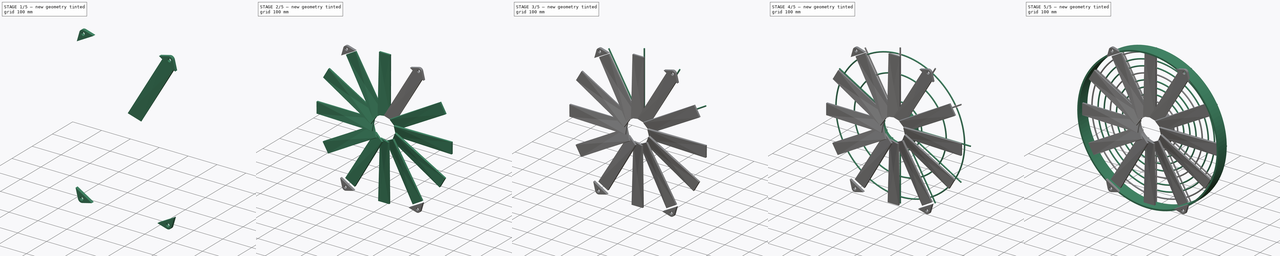
[diagram: build sequence overview — one tinted view per stage of 5, left to right]
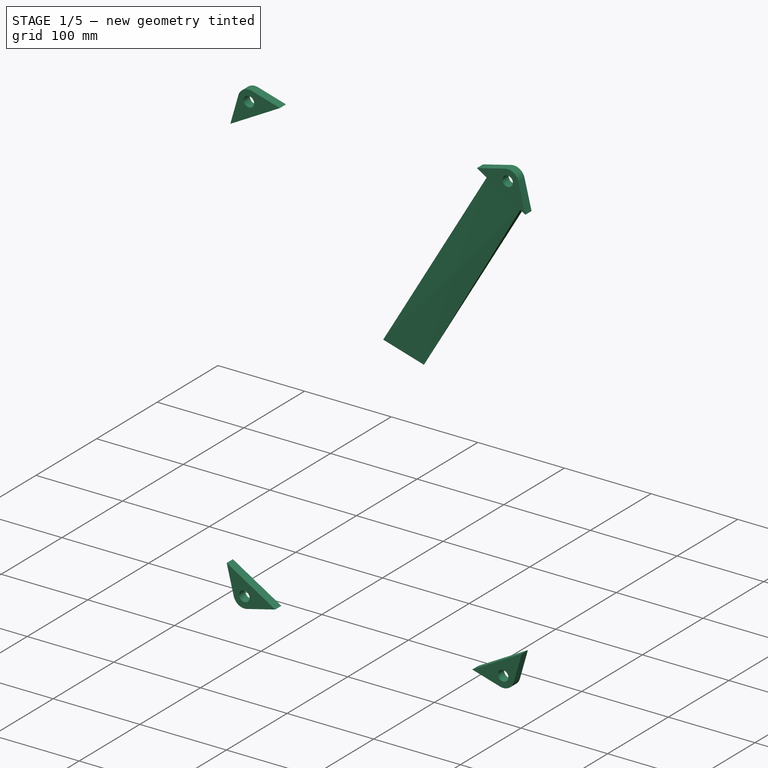
[diagram: stage 1 of 5 — iso view after this stage's code; geometry added in this stage tinted green]
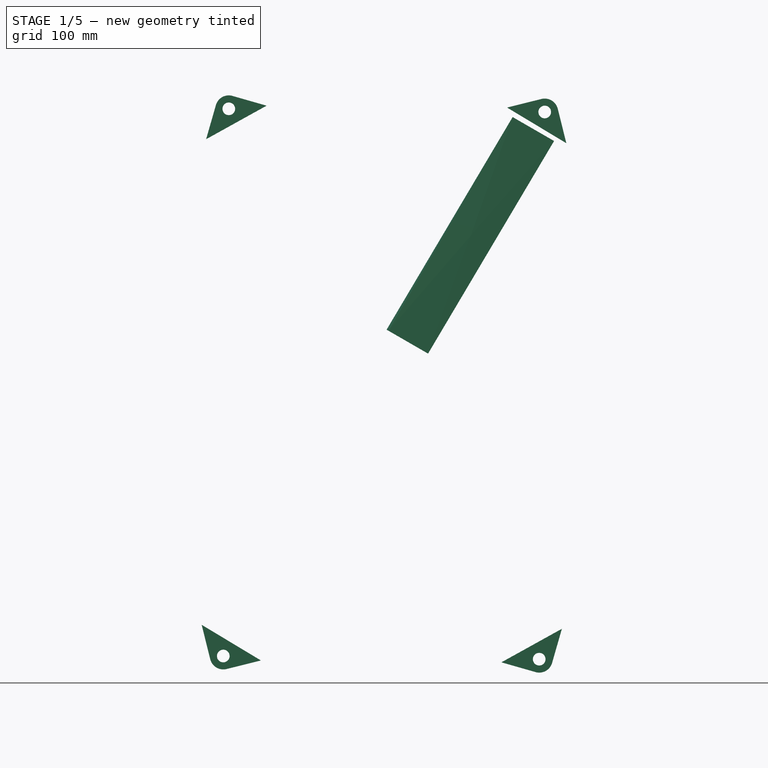
[diagram: stage 1 of 5 — front view after this stage's code; geometry added in this stage tinted green]
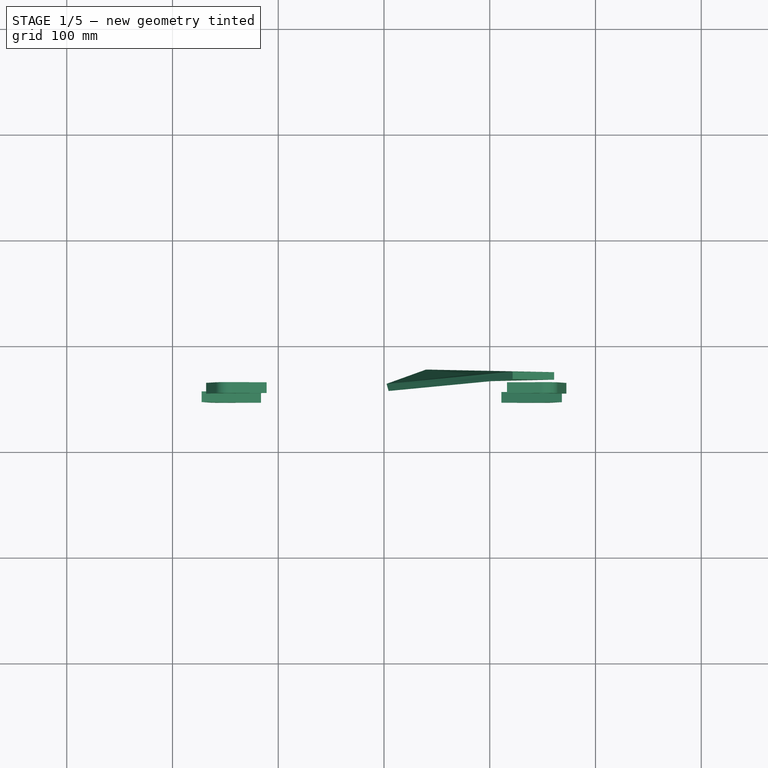
[diagram: stage 1 of 5 — top view after this stage's code; geometry added in this stage tinted green]
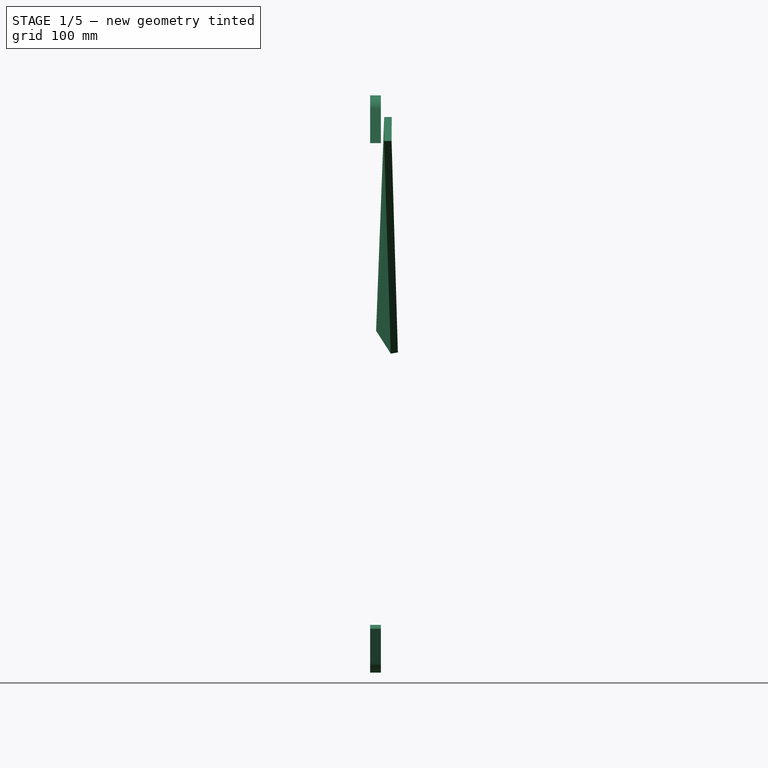
[diagram: stage 1 of 5 — right view after this stage's code; geometry added in this stage tinted green]
FCSTD DOCUMENT  (FreeCAD 0.15R4671 (Git))
Label: fan
License: All rights reserved
LicenseURL: http://en.wikipedia.org/wiki/All_rights_reserved
objects: Part::FeaturePython×13, Part::Torus×8, Part::MultiFuse×6, Sketcher::SketchObject×5, PartDesign::Pad×2, Part::Cylinder×2, PartDesign::Pocket×1, Part::Loft×1
note: 41 computed .brp shape members not serialized (recipe doc carries the construction recipe); baked Part::Feature solids carry a one-line shape summary decoded from their .brp

FEATURE [Sketcher::SketchObject] Sketch009
  Placement = pos=(0,-43.18,-50.8) rot=(-0.985257,0.120974,-0.120974;4.69754rad)
  sketch-geometry (6):
    g0: LineSegment StartX=221.955 StartY=274.772 StartZ=0 EndX=188.415 EndY=274.772 EndZ=0
    g1: LineSegment StartX=188.415 StartY=274.772 StartZ=0 EndX=234.655 EndY=228.532 EndZ=0
    g2: LineSegment StartX=234.655 StartY=228.532 StartZ=0 EndX=234.655 EndY=262.072 EndZ=0
    g3: ArcOfCircle CenterX=221.955 CenterY=262.072 CenterZ=0 NormalX=0 NormalY=0 NormalZ=1 Radius=12.7 StartAngle=0 EndAngle=1.5708
    g4: Circle CenterX=221.955 CenterY=262.072 CenterZ=0 NormalX=0 NormalY=0 NormalZ=1 Radius=5.97861
    g5: LineSegment [constr] StartX=234.655 StartY=228.532 StartZ=0 EndX=182.074 EndY=228.532 EndZ=0
  constraints (11):
    c: Horizontal(g0)
    c: Coincident(g0,g1)
    c: Coincident(g1,g2)
    c: Vertical(g2)
    c: Tangent(g0,g3) = -1.5708
    c: Tangent(g2,g3) = -1.5708
    c: Radius(g3) = 12.7
    c: Coincident(g4,g3)
    c: Coincident(g5,g1)
    c: Horizontal(g5)
    c: Angle(g1,g5) = 0.785398
FEATURE [PartDesign::Pad] Pad001  label="bolt support"
  Length = 10.16
  Length2 = 100
  Placement = pos=(0,-43.18,-50.8) rot=(-0.985257,0.120974,-0.120974;4.69754rad)
  Sketch = -> Sketch009
  Type = 0
FEATURE [Part::Loft] Loft  label="helix"
  Closed = false
  Ruled = false
  Sections = -> [Sketch002,Sketch003]
  Solid = true
FEATURE [Part::FeaturePython] Clone019  label="Clone of helix"  # Draft clone (typed FeaturePython)
  Objects = -> [Loft]
  Placement = pos=(0,0,0) rot=(0,1,0;0.523599rad)
  Scale = (1,1,1)
FEATURE [Part::FeaturePython] Clone024  label="Clone of bolt support"  # Draft clone (typed FeaturePython)
  Objects = -> [Pad001]
  Placement = pos=(43.9941,-43.18,-25.4) rot=(0.684276,-0.515639,0.515639;1.9414rad)
  Scale = (1,1,1)
FEATURE [Part::FeaturePython] Clone025  label="Clone of Clone of bolt support"  # Draft clone (typed FeaturePython)
  Objects = -> [Clone024]
  Placement = pos=(-43.9941,-43.18,25.4) rot=(0.470251,0.624045,-0.624045;2.26246rad)
  Scale = (1,1,1)
FEATURE [Part::FeaturePython] Clone026  label="Clone of bolt support001"  # Draft clone (typed FeaturePython)
  Objects = -> [Pad001]
  Placement = pos=(0,-43.18,50.8) rot=(0.086496,0.704457,-0.704457;2.96903rad)
  Scale = (1,1,1)
FEATURE [Part::MultiFuse] Fusion005
  Shapes = -> [Clone024,Pad001,Clone026,Clone025]
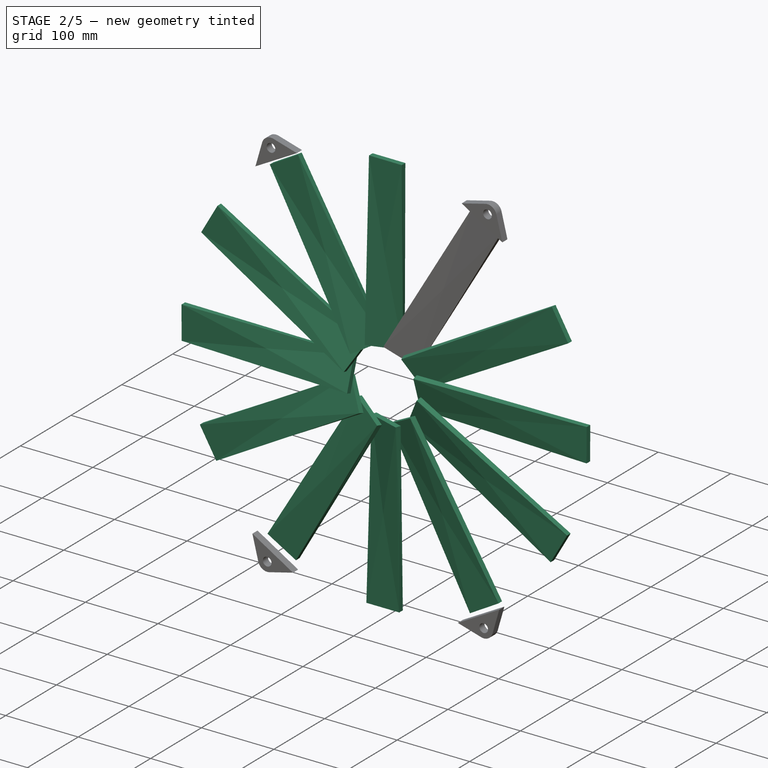
[diagram: stage 2 of 5 — iso view after this stage's code; geometry added in this stage tinted green]
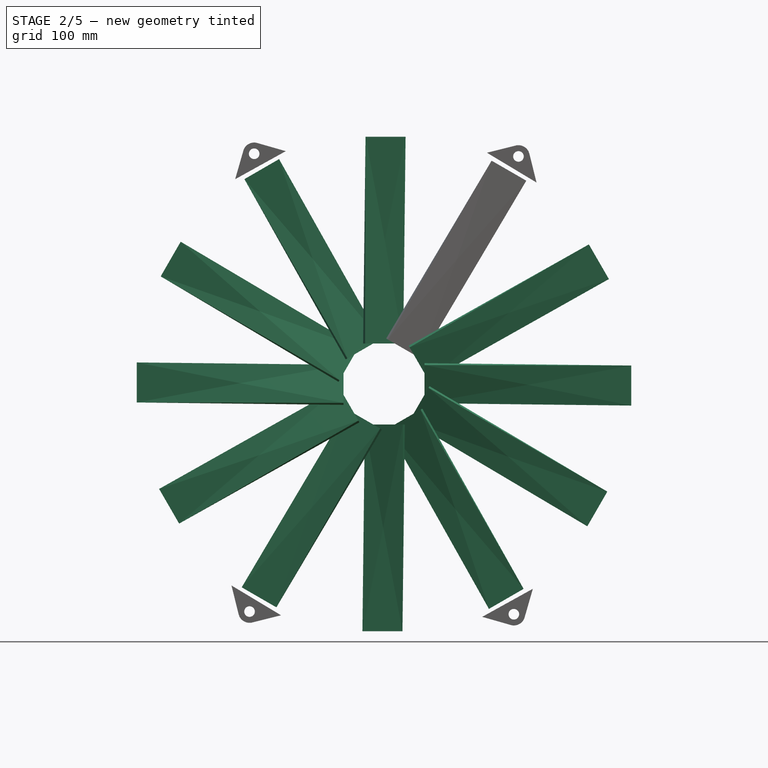
[diagram: stage 2 of 5 — front view after this stage's code; geometry added in this stage tinted green]
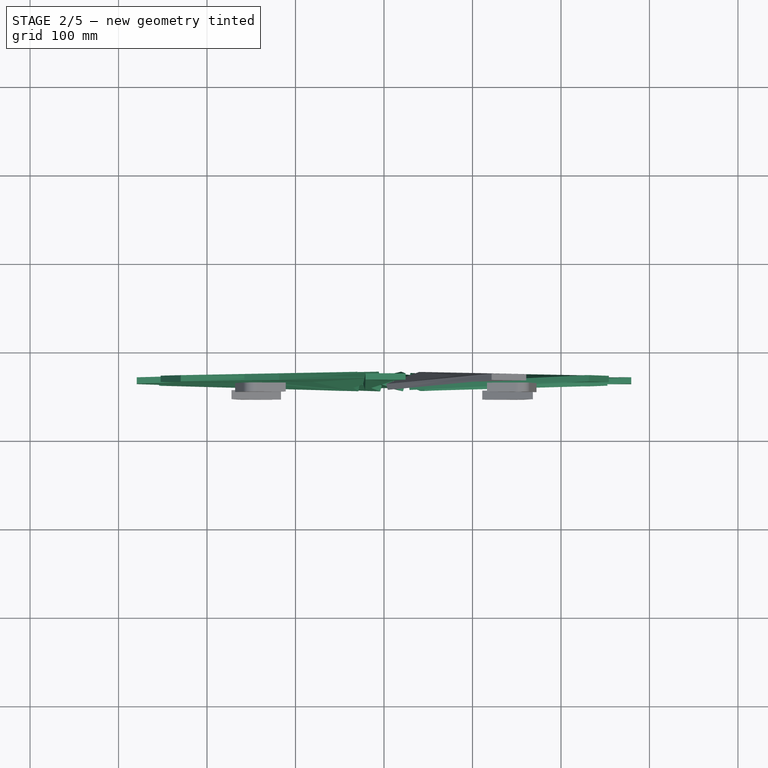
[diagram: stage 2 of 5 — top view after this stage's code; geometry added in this stage tinted green]
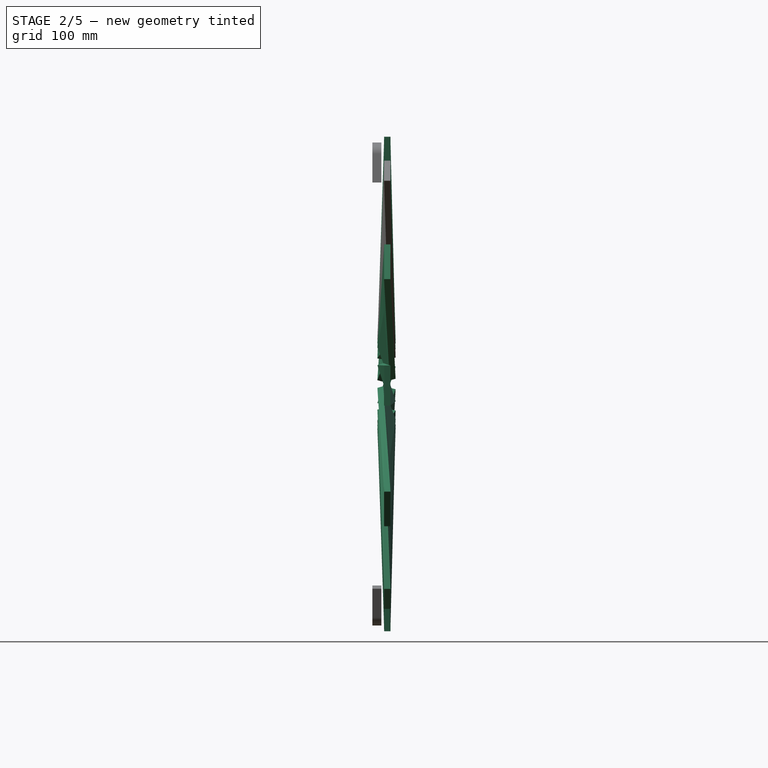
[diagram: stage 2 of 5 — right view after this stage's code; geometry added in this stage tinted green]
FEATURE [Part::FeaturePython] Clone020  label="Clone of Clone of helix"  # Draft clone (typed FeaturePython)
  Objects = -> [Clone019]
  Placement = pos=(0,0,0) rot=(0,1,0;1.0472rad)
  Scale = (1,1,1)
FEATURE [Part::FeaturePython] Clone021  label="Clone of Clone of Clone of helix"  # Draft clone (typed FeaturePython)
  Objects = -> [Clone020]
  Placement = pos=(0,0,0) rot=(0,1,0;1.5708rad)
  Scale = (1,1,1)
FEATURE [Part::MultiFuse] Fusion003
  Shapes = -> [Clone019,Clone021,Clone020,Loft]
FEATURE [Part::FeaturePython] Clone022  label="Clone of Fusion003"  # Draft clone (typed FeaturePython)
  Objects = -> [Fusion003]
  Placement = pos=(0,0,0) rot=(0,1,0;2.0944rad)
  Scale = (1,1,1)
FEATURE [Part::FeaturePython] Clone023  label="Clone of Clone of Fusion003"  # Draft clone (typed FeaturePython)
  Objects = -> [Clone022]
  Placement = pos=(0,0,0) rot=(0,1,0;4.18879rad)
  Scale = (1,1,1)
FEATURE [Part::MultiFuse] Fusion004
  Shapes = -> [Clone023,Clone022,Fusion003]
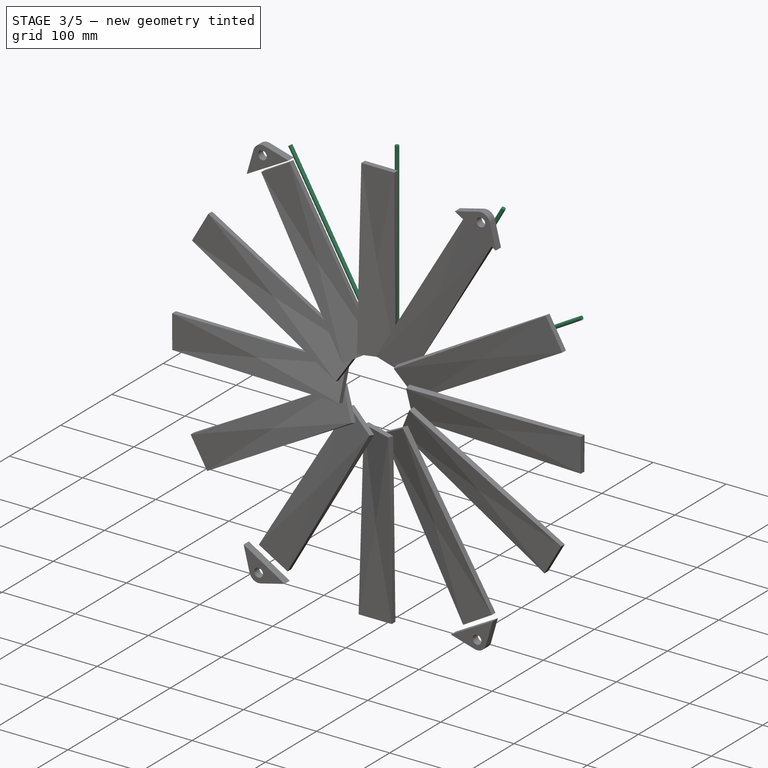
[diagram: stage 3 of 5 — iso view after this stage's code; geometry added in this stage tinted green]
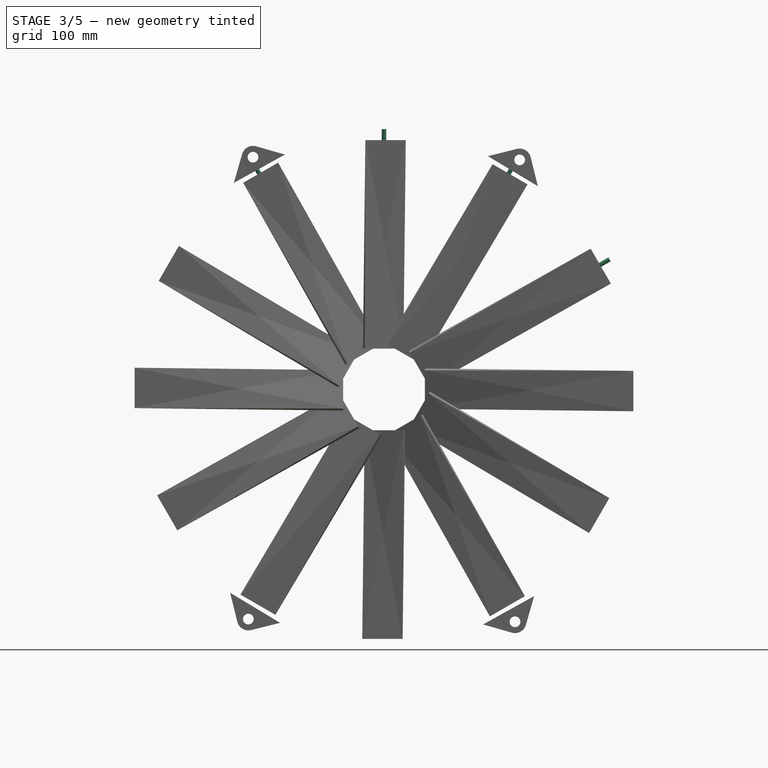
[diagram: stage 3 of 5 — front view after this stage's code; geometry added in this stage tinted green]
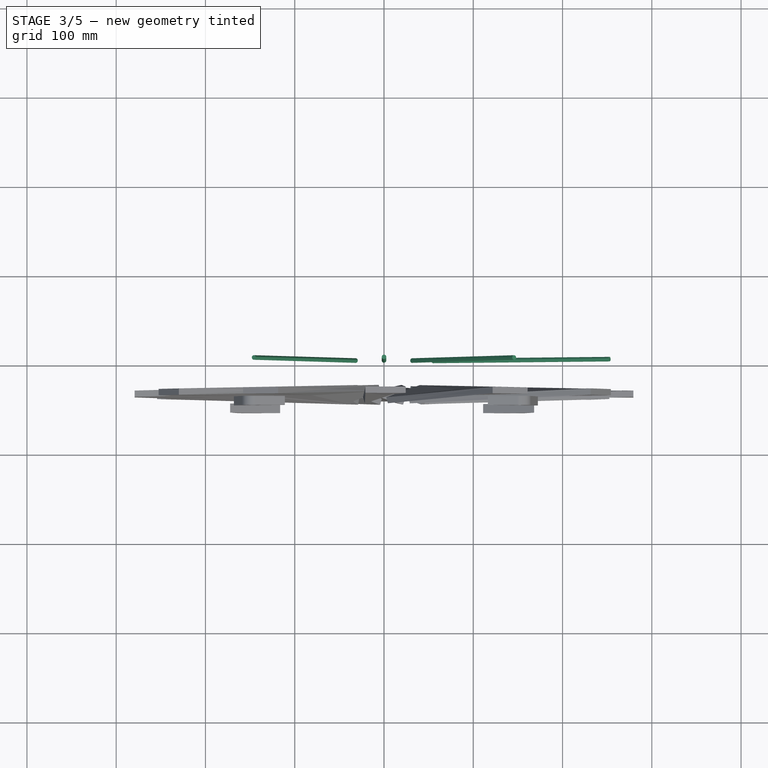
[diagram: stage 3 of 5 — top view after this stage's code; geometry added in this stage tinted green]
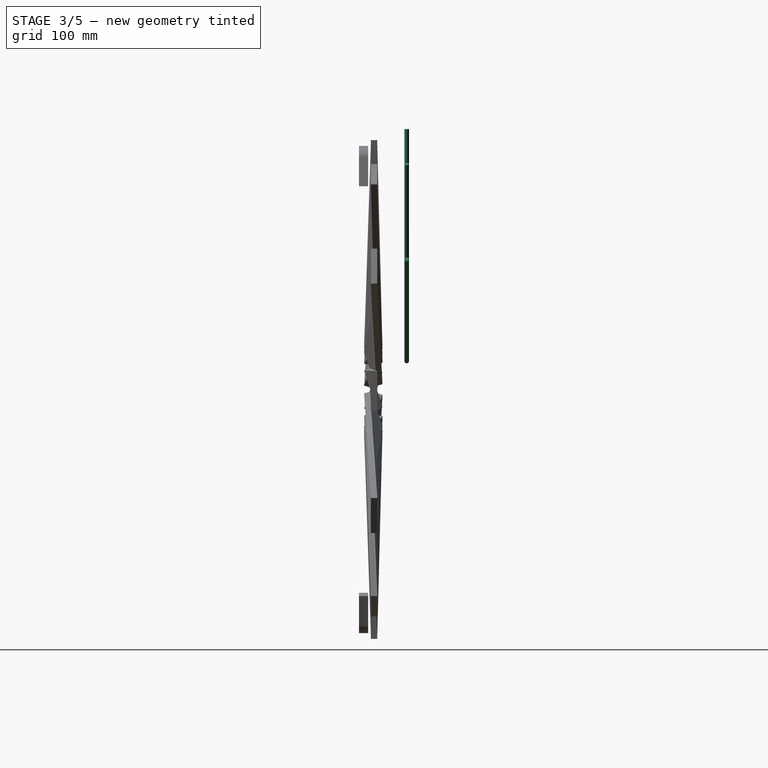
[diagram: stage 3 of 5 — right view after this stage's code; geometry added in this stage tinted green]
FEATURE [Sketcher::SketchObject] Sketch002
  Placement = pos=(0,-25.4,45.72) rot=(0,0,1;0rad)
  sketch-geometry (4):
    g0: LineSegment StartX=-23.5616 StartY=-15.5482 StartZ=0 EndX=19.5314 EndY=-1.69367 EndZ=0
    g1: LineSegment StartX=19.5314 StartY=-1.69367 StartZ=0 EndX=21.7028 EndY=-8.44756 EndZ=0
    g2: LineSegment StartX=21.7028 StartY=-8.44756 StartZ=0 EndX=-21.3902 EndY=-22.3021 EndZ=0
    g3: LineSegment StartX=-21.3902 StartY=-22.3021 StartZ=0 EndX=-23.5616 EndY=-15.5482 EndZ=0
  constraints (7):
    c: Coincident(g0,g1)
    c: Coincident(g1,g2)
    c: Coincident(g2,g3)
    c: Coincident(g3,g0)
    c: Perpendicular(g2,g3)
    c: Perpendicular(g1,g0)
    c: Perpendicular(g1,g2)
FEATURE [Sketcher::SketchObject] Sketch003
  Placement = pos=(6.35,-25.4,279.4) rot=(0,0,-1;0.314159rad)
  sketch-geometry (4):
    g0: LineSegment StartX=-23.5616 StartY=-15.5482 StartZ=0 EndX=19.5314 EndY=-1.69367 EndZ=0
    g1: LineSegment StartX=19.5314 StartY=-1.69367 StartZ=0 EndX=21.7028 EndY=-8.44756 EndZ=0
    g2: LineSegment StartX=21.7028 StartY=-8.44756 StartZ=0 EndX=-21.3902 EndY=-22.3021 EndZ=0
    g3: LineSegment StartX=-21.3902 StartY=-22.3021 StartZ=0 EndX=-23.5616 EndY=-15.5482 EndZ=0
  constraints (7):
    c: Coincident(g0,g1)
    c: Coincident(g1,g2)
    c: Coincident(g2,g3)
    c: Coincident(g3,g0)
    c: Perpendicular(g2,g3)
    c: Perpendicular(g1,g0)
    c: Perpendicular(g1,g2)
FEATURE [Part::Cylinder] Cylinder004
  Angle = 360
  Height = 203.2
  Placement = pos=(63.0991,0,0) rot=(0,1,0;1.5708rad)
  Radius = 0
FEATURE [Part::FeaturePython] Clone013  label="Clone of Cylinder004"  # Draft clone (typed FeaturePython)
  Objects = -> [Cylinder004]
  Placement = pos=(31.5495,0,-54.6454) rot=(0,1,0;2.61799rad)
  Scale = (1,1,1)
FEATURE [Part::FeaturePython] Clone014  label="Clone of Clone of Cylinder004"  # Draft clone (typed FeaturePython)
  Objects = -> [Clone013]
  Placement = pos=(0,0,-63.0991) rot=(0,1,0;3.14159rad)
  Scale = (1,1,1)
FEATURE [Part::FeaturePython] Clone017  label="Clone of Cylinder005"  # Draft clone (typed FeaturePython)
  Objects = -> [Cylinder004]
  Placement = pos=(54.6454,0,-31.5495) rot=(0,1,0;2.0944rad)
  Scale = (1,1,1)
FEATURE [Part::MultiFuse] Fusion001  label="axial grid"
  Shapes = -> [Cylinder004,Clone014,Clone017,Clone013]
FEATURE [Part::FeaturePython] Clone  label="Clone of axial grid"  # Draft clone (typed FeaturePython)
  Objects = -> [Fusion001]
  Placement = pos=(0,0,0) rot=(0,1,0;2.0944rad)
  Scale = (1,1,1)
FEATURE [Part::FeaturePython] Clone018  label="Clone of Clone of axial grid"  # Draft clone (typed FeaturePython)
  Objects = -> [Clone]
  Placement = pos=(0,0,0) rot=(0,1,0;4.18879rad)
  Scale = (1,1,1)
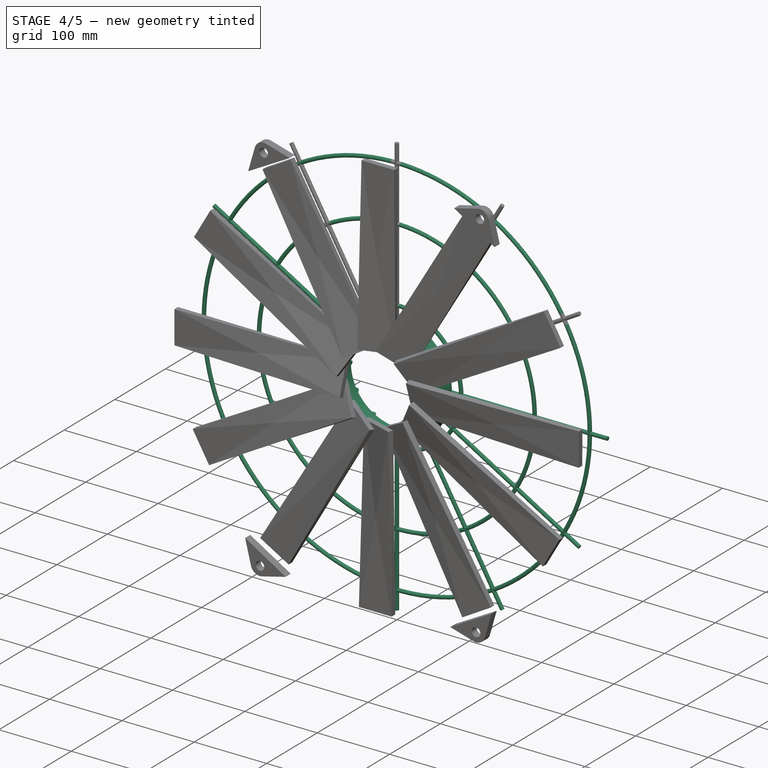
[diagram: stage 4 of 5 — iso view after this stage's code; geometry added in this stage tinted green]
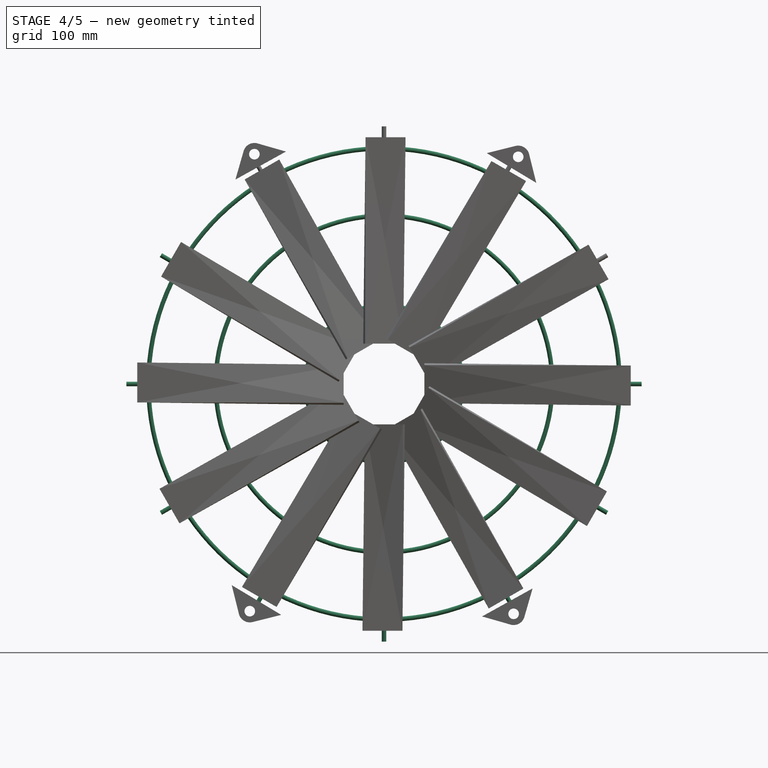
[diagram: stage 4 of 5 — front view after this stage's code; geometry added in this stage tinted green]
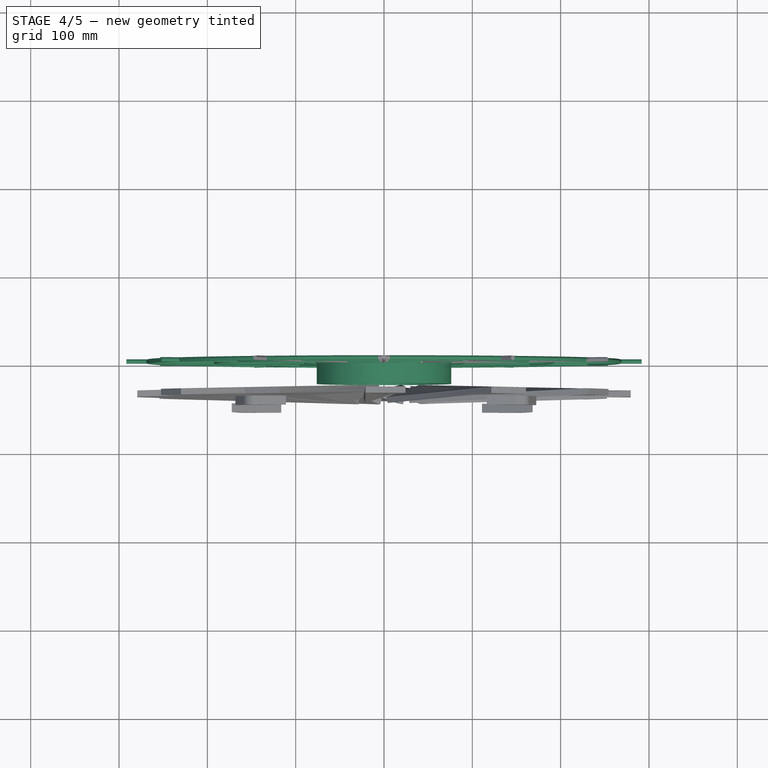
[diagram: stage 4 of 5 — top view after this stage's code; geometry added in this stage tinted green]
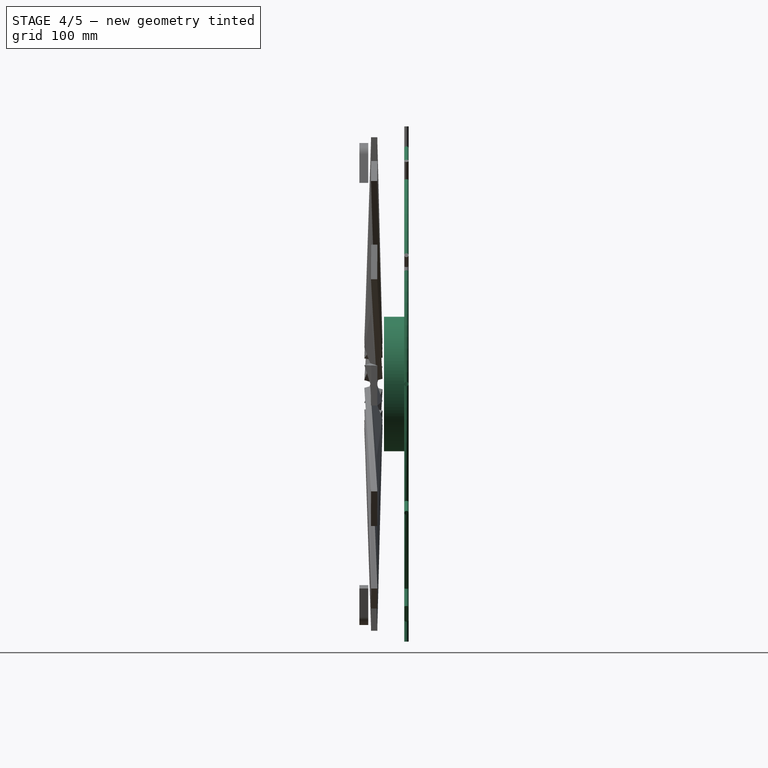
[diagram: stage 4 of 5 — right view after this stage's code; geometry added in this stage tinted green]
FEATURE [Part::Torus] Torus006
  Angle1 = -180
  Angle2 = 180
  Angle3 = 360
  Placement = pos=(0,0,0) rot=(1,0,0;1.5708rad)
  Radius1 = 190.5
  Radius2 = 2.54
FEATURE [Part::Torus] Torus007
  Angle1 = -180
  Angle2 = 180
  Angle3 = 360
  Placement = pos=(0,0,0) rot=(1,0,0;1.5708rad)
  Radius1 = 88.9
  Radius2 = 2.54
FEATURE [Part::Cylinder] Cylinder  label="engine"
  Angle = 360
  Height = 50.8
  Placement = pos=(0,0,0) rot=(1,0,0;1.5708rad)
  Radius = 60.96
FEATURE [Sketcher::SketchObject] Sketch001
  Placement = pos=(0,-50.8,0) rot=(1,0,0;1.5708rad)
  Support = -> Cylinder [Face2]
  sketch-geometry (1):
    g0: Circle CenterX=0 CenterY=0 CenterZ=0 NormalX=0 NormalY=0 NormalZ=1 Radius=66.04
  constraints (2):
    c: Coincident(g0,g-1)
    c: Radius(g0) = 66.04
FEATURE [PartDesign::Pocket] Pocket  label="axe support"
  Length = 50.8
  Placement = pos=(0,0,0) rot=(1,0,0;1.5708rad)
  Sketch = -> Sketch001
  Type = 0
FEATURE [Part::Torus] Torus
  Angle1 = -180
  Angle2 = 180
  Angle3 = 360
  Placement = pos=(0,0,0) rot=(1,0,0;1.5708rad)
  Radius1 = 266.7
  Radius2 = 2.54
FEATURE [Part::MultiFuse] Fusion002
  Shapes = -> [Clone018,Clone,Fusion001]
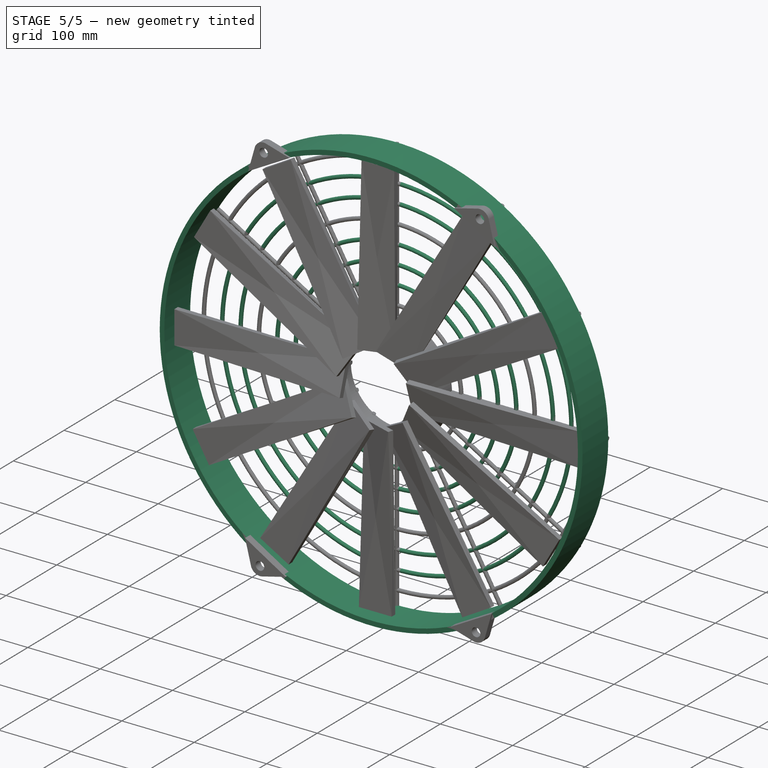
[diagram: stage 5 of 5 — iso view after this stage's code; geometry added in this stage tinted green]
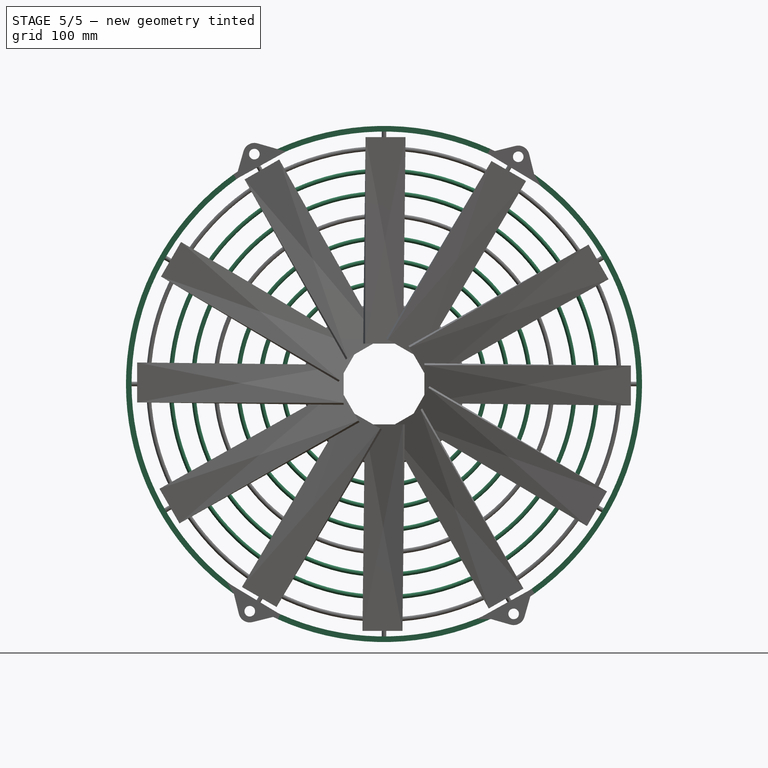
[diagram: stage 5 of 5 — front view after this stage's code; geometry added in this stage tinted green]
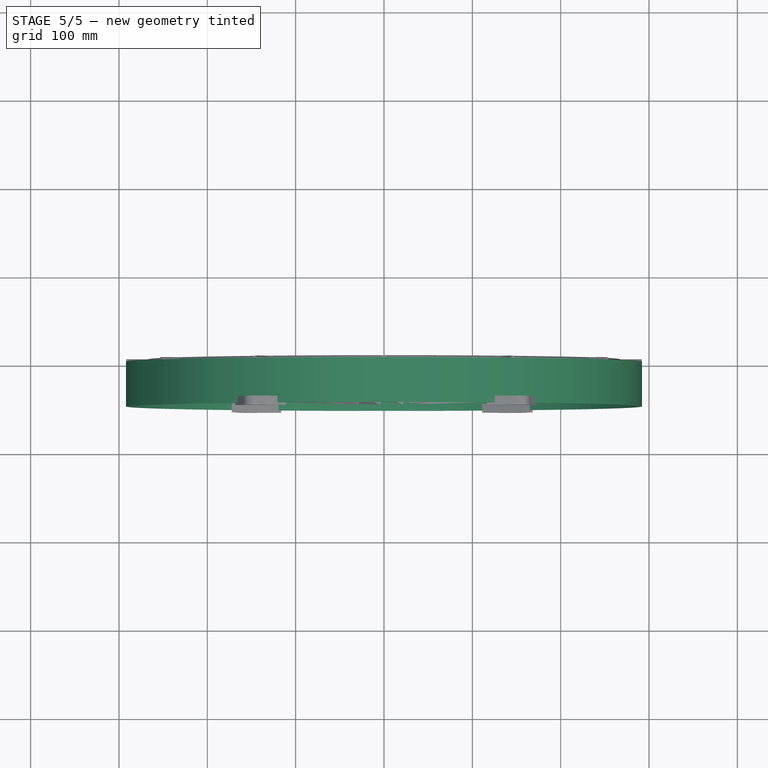
[diagram: stage 5 of 5 — top view after this stage's code; geometry added in this stage tinted green]
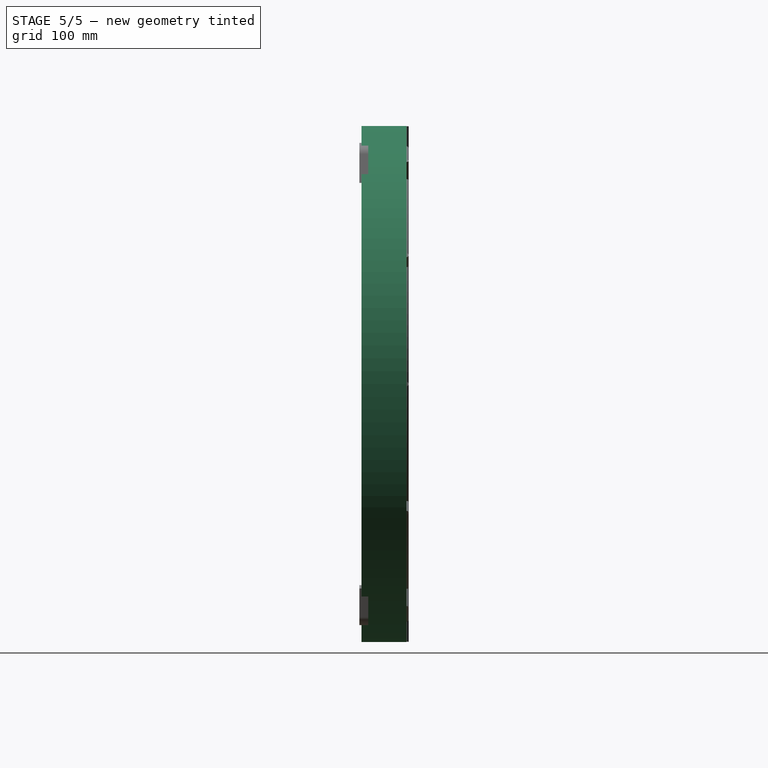
[diagram: stage 5 of 5 — right view after this stage's code; geometry added in this stage tinted green]
FEATURE [Sketcher::SketchObject] Sketch
  Placement = pos=(0,0,0) rot=(-1,0,0;4.71239rad)
  sketch-geometry (3):
    g0: Circle CenterX=0 CenterY=0 CenterZ=0 NormalX=0 NormalY=0 NormalZ=1 Radius=292.1
    g1: Circle [constr] CenterX=0 CenterY=0 CenterZ=0 NormalX=0 NormalY=0 NormalZ=1 Radius=304.8
    g2: Circle CenterX=0 CenterY=0 CenterZ=0 NormalX=0 NormalY=0 NormalZ=1 Radius=285.75
  constraints (5):
    c: Radius(g0) = 292.1
    c: Coincident(g1,g-1)
    c: Radius(g1) = 304.8
    c: Coincident(g2,g-1)
    c: Radius(g2) = 285.75
FEATURE [PartDesign::Pad] Pad  label="marco"
  Length = 50.8
  Length2 = 100
  Placement = pos=(0,0,0) rot=(-1,0,0;4.71239rad)
  Sketch = -> Sketch
  Type = 0
FEATURE [Part::Torus] Torus001
  Angle1 = -180
  Angle2 = 180
  Angle3 = 360
  Placement = pos=(0,0,0) rot=(1,0,0;1.5708rad)
  Radius1 = 241.3
  Radius2 = 2.54
FEATURE [Part::Torus] Torus002
  Angle1 = -180
  Angle2 = 180
  Angle3 = 360
  Placement = pos=(0,0,0) rot=(1,0,0;1.5708rad)
  Radius1 = 215.9
  Radius2 = 2.54
FEATURE [Part::Torus] Torus003
  Angle1 = -180
  Angle2 = 180
  Angle3 = 360
  Placement = pos=(0,0,0) rot=(1,0,0;1.5708rad)
  Radius1 = 165.1
  Radius2 = 2.54
FEATURE [Part::Torus] Torus004
  Angle1 = -180
  Angle2 = 180
  Angle3 = 360
  Placement = pos=(0,0,0) rot=(1,0,0;1.5708rad)
  Radius1 = 114.3
  Radius2 = 2.54
FEATURE [Part::Torus] Torus005
  Angle1 = -180
  Angle2 = 180
  Angle3 = 360
  Placement = pos=(0,0,0) rot=(1,0,0;1.5708rad)
  Radius1 = 139.7
  Radius2 = 2.54
FEATURE [Part::MultiFuse] Fusion  label="Grid"
  Shapes = -> [Torus007,Torus006,Torus005,Torus003,Torus001,Torus,Torus002,Torus004]
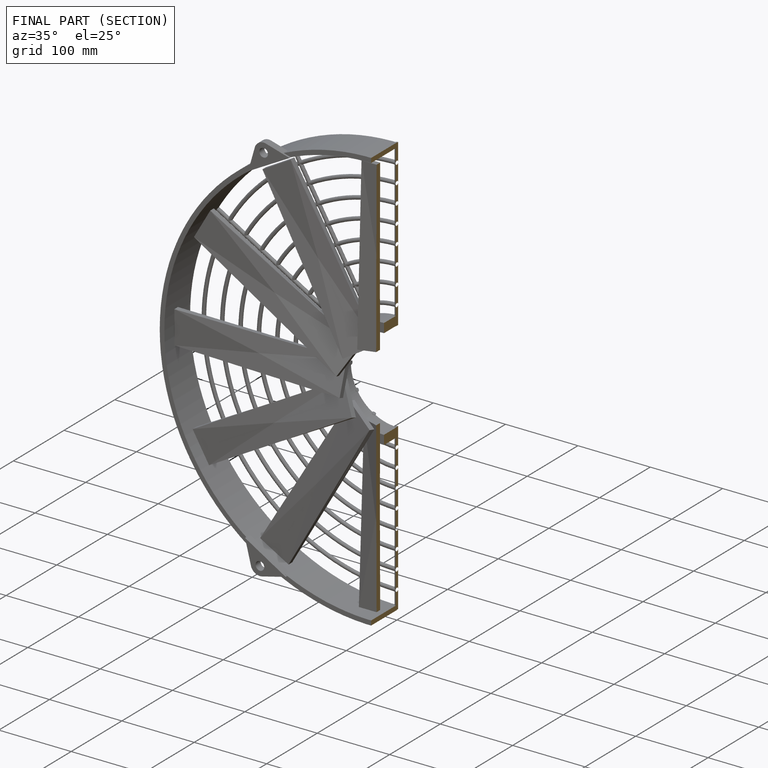
[diagram: finished part — half-section view (interior)]
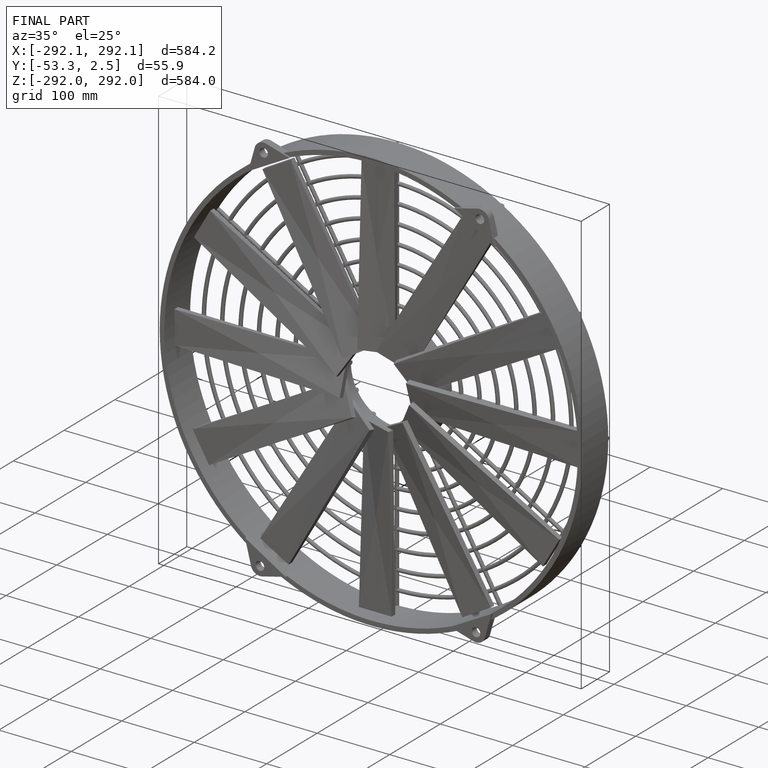
[diagram: finished part — iso view with bounding-box wireframe]
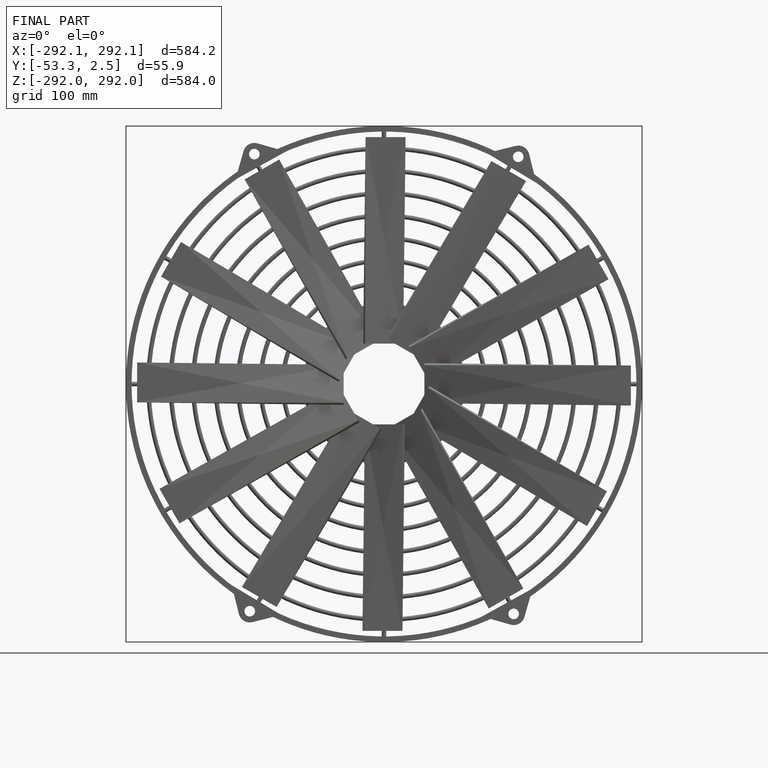
[diagram: finished part — front view with bounding-box wireframe]
